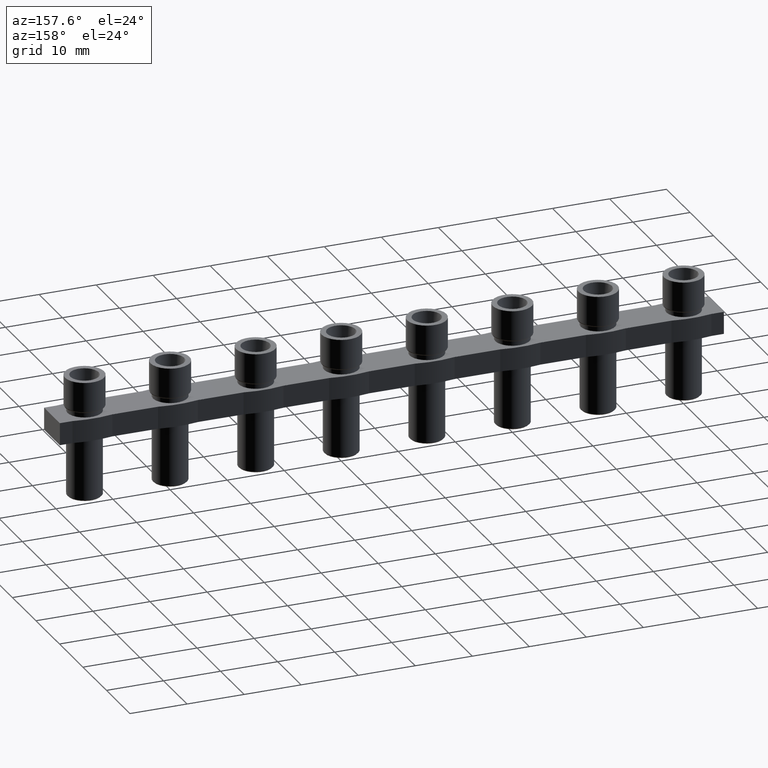
[diagram: clean part render]
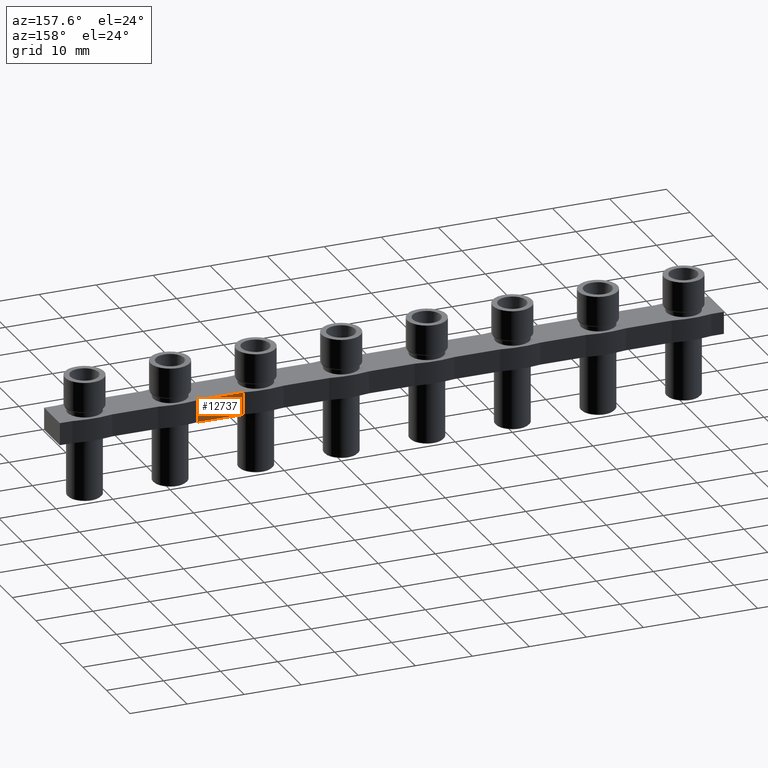
[diagram: same view with one face highlighted and labeled with its STEP entity id]
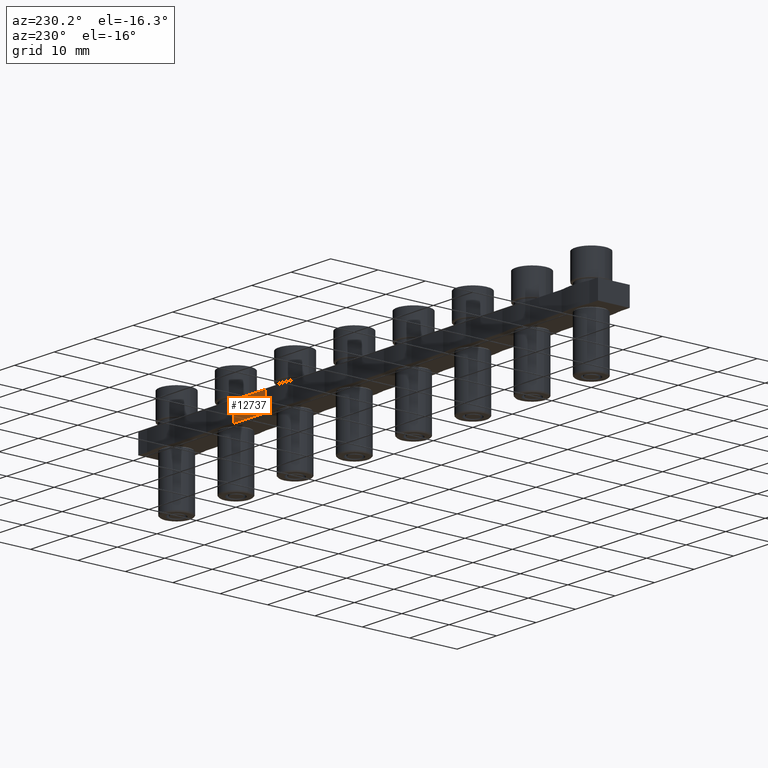
[diagram: same view with one face highlighted and labeled with its STEP entity id]
A machine part, auxiliary view. The second image highlights one B-rep face of the part: STEP entity #12737.
A second angle (auxiliary view) of the same face is appended — the face is thin or edge-on in the first view.
In plain terms, the highlighted planar face has unit normal (0, -1, 0).
Its self-contained STEP definition (entity closure, byte-faithful):
#2201 = VERTEX_POINT ( 'NONE', #8677 ) ;
#2217 = VERTEX_POINT ( 'NONE', #8691 ) ;
#2239 = VERTEX_POINT ( 'NONE', #8747 ) ;
#2243 = VERTEX_POINT ( 'NONE', #8732 ) ;
#2951 = EDGE_LOOP ( 'NONE', ( #3086, #3038, #3047, #3116 ) ) ;
#3038 = ORIENTED_EDGE ( 'NONE', *, *, #13153, .T. ) ;
#3047 = ORIENTED_EDGE ( 'NONE', *, *, #12976, .T. ) ;
#3086 = ORIENTED_EDGE ( 'NONE', *, *, #12973, .T. ) ;
#3116 = ORIENTED_EDGE ( 'NONE', *, *, #13199, .T. ) ;
#4251 = LINE ( 'NONE', #4270, #11330 ) ;
#4270 = CARTESIAN_POINT ( 'NONE',  ( 78.50000000000173400, 3.350000000000326900, -11.80160695840604700 ) ) ;
#4277 = DIRECTION ( 'NONE',  ( 0.0000000000000000000, 0.0000000000000000000, 1.000000000000000000 ) ) ;
#8677 = CARTESIAN_POINT ( 'NONE',  ( 86.50000000000156300, 3.350000000000383800, -4.800000000000001600 ) ) ;
#8691 = CARTESIAN_POINT ( 'NONE',  ( 78.50000000000173400, 3.350000000000326900, -4.800000000000001600 ) ) ;
#8732 = CARTESIAN_POINT ( 'NONE',  ( 86.50000000000156300, 3.350000000000383800, -0.9000000000000014700 ) ) ;
#8747 = CARTESIAN_POINT ( 'NONE',  ( 78.50000000000169100, 3.350000000000330900, -0.9000000000000014700 ) ) ;
#9659 = LINE ( 'NONE', #9664, #11233 ) ;
#9664 = CARTESIAN_POINT ( 'NONE',  ( 86.50000000000163400, 3.350000000000392700, -11.80160695840604700 ) ) ;
#9702 = DIRECTION ( 'NONE',  ( -0.0000000000000000000, -0.0000000000000000000, -1.000000000000000000 ) ) ;
#9886 = CARTESIAN_POINT ( 'NONE',  ( 58.85000000000163600, 3.350000000000327400, -0.9000000000000014700 ) ) ;
#9891 = LINE ( 'NONE', #9886, #12108 ) ;
#9901 = LINE ( 'NONE', #9902, #12073 ) ;
#9902 = CARTESIAN_POINT ( 'NONE',  ( 137.8500000000016700, 3.350000000000343800, -4.800000000000001600 ) ) ;
#9903 = DIRECTION ( 'NONE',  ( -1.000000000000000000, -2.491358183583711900E-016, -0.0000000000000000000 ) ) ;
#9925 = DIRECTION ( 'NONE',  ( 1.000000000000000000, 1.245679091791855700E-016, -0.0000000000000000000 ) ) ;
#10646 = PLANE ( 'NONE',  #11921 ) ;
#10662 = DIRECTION ( 'NONE',  ( -1.000000000000000000, -1.245679091791855700E-016, 0.0000000000000000000 ) ) ;
#10680 = FACE_OUTER_BOUND ( 'NONE', #2951, .T. ) ;
#10682 = CARTESIAN_POINT ( 'NONE',  ( 58.85000000000163600, 3.350000000000327400, -0.9000000000000014700 ) ) ;
#10689 = DIRECTION ( 'NONE',  ( 1.245679091791855700E-016, -1.000000000000000000, 0.0000000000000000000 ) ) ;
#11233 = VECTOR ( 'NONE', #9702, 1000.000000000000000 ) ;
#11330 = VECTOR ( 'NONE', #4277, 1000.000000000000000 ) ;
#11921 = AXIS2_PLACEMENT_3D ( 'NONE', #10682, #10689, #10662 ) ;
#12073 = VECTOR ( 'NONE', #9903, 1000.000000000000000 ) ;
#12108 = VECTOR ( 'NONE', #9925, 1000.000000000000000 ) ;
#12737 = ADVANCED_FACE ( 'NONE', ( #10680 ), #10646, .F. ) ;
#12973 = EDGE_CURVE ( 'NONE', #2239, #2243, #9891, .T. ) ;
#12976 = EDGE_CURVE ( 'NONE', #2201, #2217, #9901, .T. ) ;
#13153 = EDGE_CURVE ( 'NONE', #2243, #2201, #9659, .T. ) ;
#13199 = EDGE_CURVE ( 'NONE', #2217, #2239, #4251, .T. ) ;